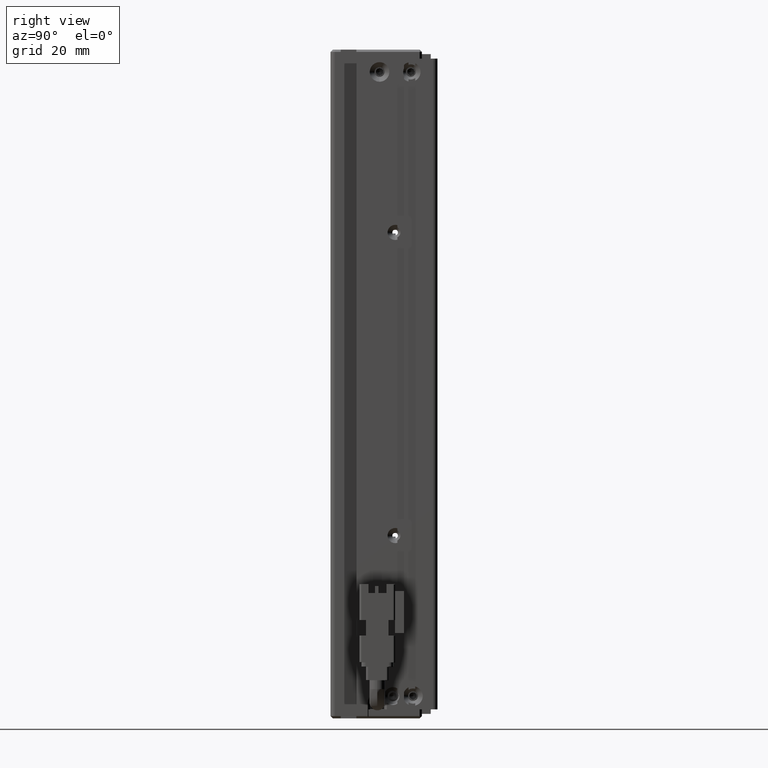
[diagram: clean part render]
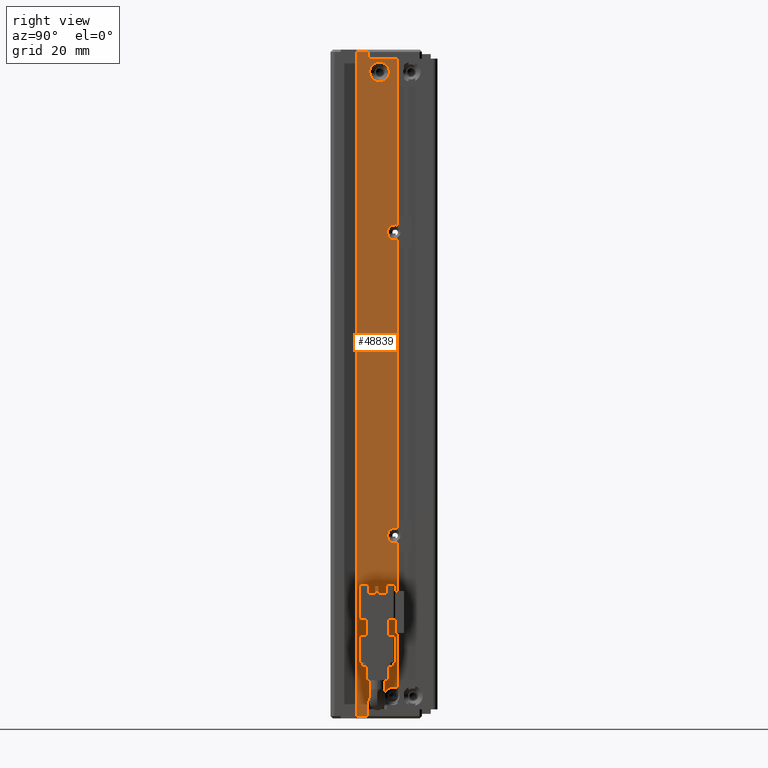
[diagram: same view with one face highlighted and labeled with its STEP entity id]
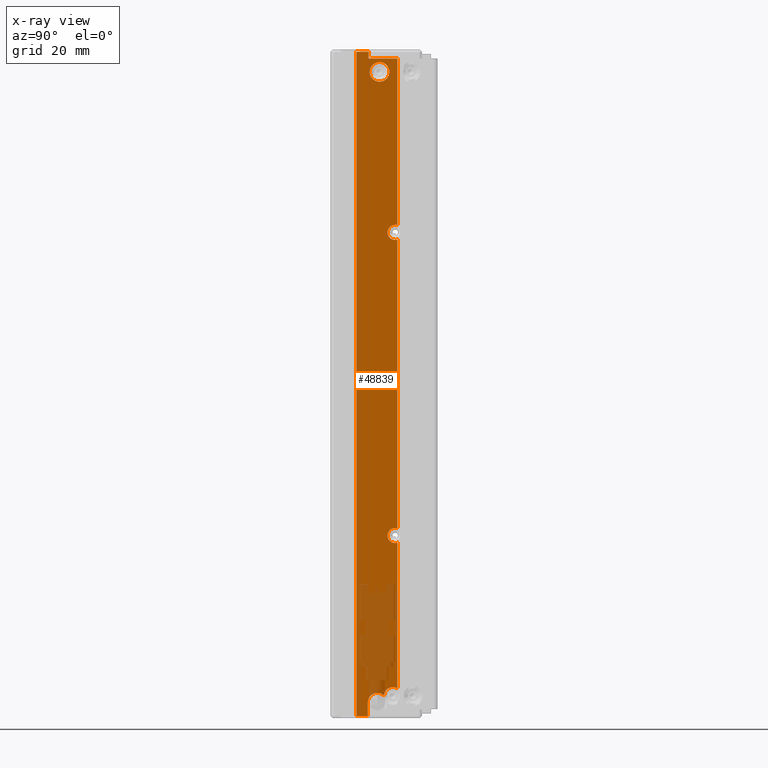
[diagram: x-ray of the same camera — body ghosted, the highlighted face saturated]
A machine part, right view. The second image highlights one B-rep face of the part: STEP entity #48839.
The next image is the same camera in x-ray: the body ghosted, the highlighted face saturated — about 12% of this face is hidden behind the body in this view.
In plain terms, the highlighted planar face has unit normal (-1, 0, 0).
Its self-contained STEP definition (entity closure, byte-faithful):
#209 = DIRECTION ( 'NONE',  ( 0.0000000000000000000, 0.0000000000000000000, 1.000000000000000000 ) ) ;
#380 = AXIS2_PLACEMENT_3D ( 'NONE', #51250, #61962, #30269 ) ;
#1407 = CARTESIAN_POINT ( 'NONE',  ( 58.42537974681950900, 25.49073232304837000, -149.0000000000000300 ) ) ;
#1553 = CARTESIAN_POINT ( 'NONE',  ( 58.42537974687635200, 25.49073232304837000, -79.29999999996380200 ) ) ;
#1597 = EDGE_CURVE ( 'NONE', #37807, #18706, #18166, .T. ) ;
#1899 = ORIENTED_EDGE ( 'NONE', *, *, #47161, .F. ) ;
#2376 = VERTEX_POINT ( 'NONE', #18900 ) ;
#2536 = ORIENTED_EDGE ( 'NONE', *, *, #44950, .F. ) ;
#2674 = CARTESIAN_POINT ( 'NONE',  ( 58.42537974676266500, 21.99073232304837300, -44.99999999999998600 ) ) ;
#3577 = DIRECTION ( 'NONE',  ( 1.000000000000000000, 0.0000000000000000000, 0.0000000000000000000 ) ) ;
#3642 = ORIENTED_EDGE ( 'NONE', *, *, #36129, .T. ) ;
#4445 = CARTESIAN_POINT ( 'NONE',  ( 58.42537974683542500, 19.34073232304833600, -40.00000000000000700 ) ) ;
#4812 = EDGE_LOOP ( 'NONE', ( #67305, #54950, #11569, #37983, #1899, #31576, #7267, #33603, #32512, #41213, #3642, #32925, #36782, #26568, #52739, #7398, #2536, #39683 ) ) ;
#5121 = VECTOR ( 'NONE', #42976, 1000.000000000000000 ) ;
#5564 = CARTESIAN_POINT ( 'NONE',  ( 58.42537974681950900, 21.49073232304837000, -186.4500000000000200 ) ) ;
#5722 = CARTESIAN_POINT ( 'NONE',  ( 58.42537974683542500, 25.99073232304837700, -40.00000000000000700 ) ) ;
#5753 = AXIS2_PLACEMENT_3D ( 'NONE', #24024, #6786, #23775 ) ;
#6017 = LINE ( 'NONE', #64850, #5121 ) ;
#6167 = CARTESIAN_POINT ( 'NONE',  ( 58.42537974676266500, 21.99073232304837300, -47.19999999996617400 ) ) ;
#6473 = CARTESIAN_POINT ( 'NONE',  ( 58.42537974686080600, 25.99073232304837700, -79.37519231905119500 ) ) ;
#6786 = DIRECTION ( 'NONE',  ( 1.000000000000000000, 0.0000000000000000000, 0.0000000000000000000 ) ) ;
#7267 = ORIENTED_EDGE ( 'NONE', *, *, #35545, .F. ) ;
#7398 = ORIENTED_EDGE ( 'NONE', *, *, #26189, .F. ) ;
#7445 = EDGE_CURVE ( 'NONE', #37651, #61332, #32963, .T. ) ;
#7923 = DIRECTION ( 'NONE',  ( 0.0000000000000000000, 0.0000000000000000000, -1.000000000000000000 ) ) ;
#8217 = VERTEX_POINT ( 'NONE', #39108 ) ;
#9069 = CARTESIAN_POINT ( 'NONE',  ( 58.42537974687635200, 25.49073232304837000, -81.00000000000000000 ) ) ;
#9858 = CIRCLE ( 'NONE', #18851, 2.149999999998986100 ) ;
#10174 = DIRECTION ( 'NONE',  ( 1.000000000000000000, 0.0000000000000000000, 0.0000000000000000000 ) ) ;
#11569 = ORIENTED_EDGE ( 'NONE', *, *, #30115, .F. ) ;
#11638 = CARTESIAN_POINT ( 'NONE',  ( 58.42537974683543900, 7.083797468354437600, -189.5000000000000000 ) ) ;
#11694 = CIRCLE ( 'NONE', #59690, 2.199999999966187200 ) ;
#12816 = EDGE_CURVE ( 'NONE', #37807, #43029, #33726, .T. ) ;
#13010 = VERTEX_POINT ( 'NONE', #21828 ) ;
#13177 = CARTESIAN_POINT ( 'NONE',  ( 58.42537974683542500, 25.99073232304837700, -40.00000000000000700 ) ) ;
#13226 = DIRECTION ( 'NONE',  ( 1.000000000000000000, 0.0000000000000000000, 0.0000000000000000000 ) ) ;
#13348 = CIRCLE ( 'NONE', #51357, 1.700000000036200300 ) ;
#13448 = CIRCLE ( 'NONE', #17235, 2.000000000002721800 ) ;
#15000 = CIRCLE ( 'NONE', #47190, 1.700000000019824500 ) ;
#15074 = VERTEX_POINT ( 'NONE', #36840 ) ;
#15156 = DIRECTION ( 'NONE',  ( 1.000000000000000000, 0.0000000000000000000, 0.0000000000000000000 ) ) ;
#15589 = ORIENTED_EDGE ( 'NONE', *, *, #42291, .F. ) ;
#16383 = DIRECTION ( 'NONE',  ( 0.0000000000000000000, 0.0000000000000000000, -1.000000000000000000 ) ) ;
#16417 = VERTEX_POINT ( 'NONE', #27073 ) ;
#17235 = AXIS2_PLACEMENT_3D ( 'NONE', #70205, #20783, #48274 ) ;
#17456 = LINE ( 'NONE', #40094, #56688 ) ;
#18050 = CARTESIAN_POINT ( 'NONE',  ( 58.42537974681950900, 25.49073232304837000, -150.7000000000198600 ) ) ;
#18166 = LINE ( 'NONE', #11638, #50650 ) ;
#18706 = VERTEX_POINT ( 'NONE', #48179 ) ;
#18851 = AXIS2_PLACEMENT_3D ( 'NONE', #5564, #38125, #27578 ) ;
#18900 = CARTESIAN_POINT ( 'NONE',  ( 58.42537974687635200, 25.49073232304837000, -82.70000000003619800 ) ) ;
#19412 = EDGE_LOOP ( 'NONE', ( #15589, #24943 ) ) ;
#20783 = DIRECTION ( 'NONE',  ( 1.000000000000000000, 0.0000000000000000000, 0.0000000000000000000 ) ) ;
#20996 = LINE ( 'NONE', #31139, #62815 ) ;
#21828 = CARTESIAN_POINT ( 'NONE',  ( 58.42537974683542500, 19.49073232304837000, -40.50000000000002100 ) ) ;
#22389 = DIRECTION ( 'NONE',  ( 0.0000000000000000000, 1.000000000000000000, -0.0000000000000000000 ) ) ;
#22609 = CIRCLE ( 'NONE', #380, 2.000000000002721800 ) ;
#23775 = DIRECTION ( 'NONE',  ( 0.0000000000000000000, 0.0000000000000000000, -1.000000000000000000 ) ) ;
#24024 = CARTESIAN_POINT ( 'NONE',  ( 58.42537974681950900, 25.49073232304837000, -149.0000000000000300 ) ) ;
#24393 = DIRECTION ( 'NONE',  ( -0.0000000000000000000, -0.0000000000000000000, -1.000000000000000000 ) ) ;
#24943 = ORIENTED_EDGE ( 'NONE', *, *, #64736, .F. ) ;
#26043 = DIRECTION ( 'NONE',  ( -0.0000000000000000000, -0.0000000000000000000, -1.000000000000000000 ) ) ;
#26189 = EDGE_CURVE ( 'NONE', #39733, #18706, #40770, .T. ) ;
#26568 = ORIENTED_EDGE ( 'NONE', *, *, #12816, .F. ) ;
#27073 = CARTESIAN_POINT ( 'NONE',  ( 58.42537974681831500, 25.99073232304837700, -150.6248076809466700 ) ) ;
#27141 = CARTESIAN_POINT ( 'NONE',  ( 58.42537974681950900, 25.49073232304837000, -149.0000000000000300 ) ) ;
#27578 = DIRECTION ( 'NONE',  ( 0.0000000000000000000, 0.0000000000000000000, -1.000000000000000000 ) ) ;
#29268 = VECTOR ( 'NONE', #24393, 1000.000000000000000 ) ;
#29681 = CARTESIAN_POINT ( 'NONE',  ( 58.42537974681950900, 25.49073232304837000, -147.2999999999802000 ) ) ;
#29938 = DIRECTION ( 'NONE',  ( 1.000000000000000000, 0.0000000000000000000, 0.0000000000000000000 ) ) ;
#30115 = EDGE_CURVE ( 'NONE', #33402, #16417, #15000, .T. ) ;
#30269 = DIRECTION ( 'NONE',  ( 0.0000000000000000000, 0.0000000000000000000, -1.000000000000000000 ) ) ;
#30349 = CARTESIAN_POINT ( 'NONE',  ( 58.42537974683542500, 16.79073232304836700, -40.00000000000000700 ) ) ;
#30562 = CARTESIAN_POINT ( 'NONE',  ( 58.42537974686080600, 25.99073232304837700, -82.62480768094880500 ) ) ;
#30860 = AXIS2_PLACEMENT_3D ( 'NONE', #64489, #15156, #36694 ) ;
#31139 = CARTESIAN_POINT ( 'NONE',  ( 58.42537974683542500, 19.49073232304837000, -40.00000000000000700 ) ) ;
#31576 = ORIENTED_EDGE ( 'NONE', *, *, #7445, .F. ) ;
#32512 = ORIENTED_EDGE ( 'NONE', *, *, #48625, .F. ) ;
#32522 = EDGE_CURVE ( 'NONE', #36816, #50336, #13448, .T. ) ;
#32810 = CARTESIAN_POINT ( 'NONE',  ( 58.42537974684719900, 22.99268633698879300, -184.9116131370623500 ) ) ;
#32925 = ORIENTED_EDGE ( 'NONE', *, *, #54848, .F. ) ;
#32963 = LINE ( 'NONE', #47776, #55952 ) ;
#33402 = VERTEX_POINT ( 'NONE', #18050 ) ;
#33530 = LINE ( 'NONE', #13177, #29268 ) ;
#33603 = ORIENTED_EDGE ( 'NONE', *, *, #35565, .F. ) ;
#33726 = LINE ( 'NONE', #30349, #60980 ) ;
#33917 = VERTEX_POINT ( 'NONE', #66437 ) ;
#34195 = DIRECTION ( 'NONE',  ( 1.000000000000000000, 0.0000000000000000000, 0.0000000000000000000 ) ) ;
#34278 = EDGE_CURVE ( 'NONE', #8217, #56553, #68775, .T. ) ;
#34912 = EDGE_CURVE ( 'NONE', #50336, #62211, #22609, .T. ) ;
#35545 = EDGE_CURVE ( 'NONE', #2376, #37651, #56565, .T. ) ;
#35565 = EDGE_CURVE ( 'NONE', #66117, #2376, #62532, .T. ) ;
#36129 = EDGE_CURVE ( 'NONE', #8217, #33917, #6017, .T. ) ;
#36163 = CARTESIAN_POINT ( 'NONE',  ( 58.42537974687635200, 25.49073232304837000, -81.00000000000000000 ) ) ;
#36694 = DIRECTION ( 'NONE',  ( 0.0000000000000000000, 0.0000000000000000000, -1.000000000000000000 ) ) ;
#36782 = ORIENTED_EDGE ( 'NONE', *, *, #70020, .F. ) ;
#36816 = VERTEX_POINT ( 'NONE', #55436 ) ;
#36840 = CARTESIAN_POINT ( 'NONE',  ( 58.42537974676266500, 21.99073232304837300, -42.80000000003379800 ) ) ;
#37651 = VERTEX_POINT ( 'NONE', #30562 ) ;
#37807 = VERTEX_POINT ( 'NONE', #60262 ) ;
#37983 = ORIENTED_EDGE ( 'NONE', *, *, #60718, .F. ) ;
#38125 = DIRECTION ( 'NONE',  ( 1.000000000000000000, 0.0000000000000000000, 0.0000000000000000000 ) ) ;
#39108 = CARTESIAN_POINT ( 'NONE',  ( 58.42537974683542500, 25.99073232304837700, -42.00000000000000700 ) ) ;
#39683 = ORIENTED_EDGE ( 'NONE', *, *, #34912, .F. ) ;
#39733 = VERTEX_POINT ( 'NONE', #45657 ) ;
#40094 = CARTESIAN_POINT ( 'NONE',  ( 58.42537974683542500, 7.083797468354437600, -40.50000000000000700 ) ) ;
#40770 = LINE ( 'NONE', #4445, #56909 ) ;
#41192 = DIRECTION ( 'NONE',  ( 0.0000000000000000000, 0.0000000000000000000, -1.000000000000000000 ) ) ;
#41213 = ORIENTED_EDGE ( 'NONE', *, *, #34278, .F. ) ;
#42291 = EDGE_CURVE ( 'NONE', #53633, #15074, #11694, .T. ) ;
#42834 = EDGE_CURVE ( 'NONE', #16417, #36816, #33530, .T. ) ;
#42976 = DIRECTION ( 'NONE',  ( -0.0000000000000000000, -1.000000000000000000, -0.0000000000000000000 ) ) ;
#43029 = VERTEX_POINT ( 'NONE', #55969 ) ;
#43174 = DIRECTION ( 'NONE',  ( -0.0000000000000000000, -0.0000000000000000000, -1.000000000000000000 ) ) ;
#43758 = DIRECTION ( 'NONE',  ( -0.0000000000000000000, -0.0000000000000000000, -1.000000000000000000 ) ) ;
#44950 = EDGE_CURVE ( 'NONE', #62211, #39733, #9858, .T. ) ;
#45657 = CARTESIAN_POINT ( 'NONE',  ( 58.42537974678086200, 19.34073232307573400, -186.4500000000000200 ) ) ;
#46198 = VERTEX_POINT ( 'NONE', #29681 ) ;
#46864 = DIRECTION ( 'NONE',  ( 0.0000000000000000000, 0.0000000000000000000, -1.000000000000000000 ) ) ;
#47088 = DIRECTION ( 'NONE',  ( 0.0000000000000000000, 0.0000000000000000000, -1.000000000000000000 ) ) ;
#47161 = EDGE_CURVE ( 'NONE', #61332, #46198, #65332, .T. ) ;
#47190 = AXIS2_PLACEMENT_3D ( 'NONE', #27141, #10174, #16383 ) ;
#47776 = CARTESIAN_POINT ( 'NONE',  ( 58.42537974683542500, 25.99073232304837700, -40.00000000000000700 ) ) ;
#48073 = AXIS2_PLACEMENT_3D ( 'NONE', #1407, #34195, #61340 ) ;
#48179 = CARTESIAN_POINT ( 'NONE',  ( 58.42537974683542500, 19.34073232304834300, -189.5000000000000300 ) ) ;
#48274 = DIRECTION ( 'NONE',  ( 0.0000000000000000000, 0.0000000000000000000, -1.000000000000000000 ) ) ;
#48339 = FACE_OUTER_BOUND ( 'NONE', #4812, .T. ) ;
#48625 = EDGE_CURVE ( 'NONE', #56553, #66117, #13348, .T. ) ;
#48839 = ADVANCED_FACE ( 'NONE', ( #48339, #55129 ), #49941, .F. ) ;
#49251 = DIRECTION ( 'NONE',  ( -1.000000000000000000, 0.0000000000000000000, 0.0000000000000000000 ) ) ;
#49713 = CARTESIAN_POINT ( 'NONE',  ( 58.42537974683542500, 7.083797468354437600, -40.00000000000000700 ) ) ;
#49925 = CARTESIAN_POINT ( 'NONE',  ( 58.42537974687635200, 24.99073232304836600, -182.9999999999972700 ) ) ;
#49941 = PLANE ( 'NONE',  #65983 ) ;
#50336 = VERTEX_POINT ( 'NONE', #49925 ) ;
#50650 = VECTOR ( 'NONE', #22389, 1000.000000000000000 ) ;
#51250 = CARTESIAN_POINT ( 'NONE',  ( 58.42537974687635200, 24.99073232304836600, -185.0000000000000000 ) ) ;
#51357 = AXIS2_PLACEMENT_3D ( 'NONE', #57315, #29938, #41192 ) ;
#52471 = CIRCLE ( 'NONE', #48073, 1.700000000019824500 ) ;
#52739 = ORIENTED_EDGE ( 'NONE', *, *, #1597, .T. ) ;
#53570 = AXIS2_PLACEMENT_3D ( 'NONE', #36163, #57512, #46864 ) ;
#53633 = VERTEX_POINT ( 'NONE', #6167 ) ;
#54266 = VECTOR ( 'NONE', #43758, 1000.000000000000000 ) ;
#54848 = EDGE_CURVE ( 'NONE', #13010, #33917, #20996, .T. ) ;
#54950 = ORIENTED_EDGE ( 'NONE', *, *, #42834, .F. ) ;
#55129 = FACE_BOUND ( 'NONE', #19412, .T. ) ;
#55436 = CARTESIAN_POINT ( 'NONE',  ( 58.42537974686867100, 25.99073232304837700, -183.2679491924368200 ) ) ;
#55952 = VECTOR ( 'NONE', #26043, 1000.000000000000000 ) ;
#55969 = CARTESIAN_POINT ( 'NONE',  ( 58.42537974683542500, 16.79073232304836300, -40.50000000000002100 ) ) ;
#56553 = VERTEX_POINT ( 'NONE', #6473 ) ;
#56565 = CIRCLE ( 'NONE', #62217, 1.700000000036200300 ) ;
#56688 = VECTOR ( 'NONE', #67484, 1000.000000000000000 ) ;
#56909 = VECTOR ( 'NONE', #43174, 1000.000000000000000 ) ;
#57168 = DIRECTION ( 'NONE',  ( 0.0000000000000000000, 0.0000000000000000000, 1.000000000000000000 ) ) ;
#57315 = CARTESIAN_POINT ( 'NONE',  ( 58.42537974687635200, 25.49073232304837000, -81.00000000000000000 ) ) ;
#57512 = DIRECTION ( 'NONE',  ( 1.000000000000000000, 0.0000000000000000000, 0.0000000000000000000 ) ) ;
#58699 = DIRECTION ( 'NONE',  ( -0.0000000000000000000, -0.0000000000000000000, -1.000000000000000000 ) ) ;
#59690 = AXIS2_PLACEMENT_3D ( 'NONE', #2674, #13226, #7923 ) ;
#60262 = CARTESIAN_POINT ( 'NONE',  ( 58.42537974683543200, 16.79073232304836700, -189.5000000000000000 ) ) ;
#60718 = EDGE_CURVE ( 'NONE', #46198, #33402, #52471, .T. ) ;
#60980 = VECTOR ( 'NONE', #57168, 1000.000000000000000 ) ;
#61332 = VERTEX_POINT ( 'NONE', #62702 ) ;
#61340 = DIRECTION ( 'NONE',  ( 0.0000000000000000000, 0.0000000000000000000, -1.000000000000000000 ) ) ;
#61962 = DIRECTION ( 'NONE',  ( 1.000000000000000000, 0.0000000000000000000, 0.0000000000000000000 ) ) ;
#62211 = VERTEX_POINT ( 'NONE', #32810 ) ;
#62217 = AXIS2_PLACEMENT_3D ( 'NONE', #9069, #3577, #47088 ) ;
#62532 = CIRCLE ( 'NONE', #53570, 1.700000000036200300 ) ;
#62702 = CARTESIAN_POINT ( 'NONE',  ( 58.42537974681831500, 25.99073232304837700, -147.3751923190533300 ) ) ;
#62815 = VECTOR ( 'NONE', #58699, 1000.000000000000000 ) ;
#64489 = CARTESIAN_POINT ( 'NONE',  ( 58.42537974676266500, 21.99073232304837300, -44.99999999999998600 ) ) ;
#64736 = EDGE_CURVE ( 'NONE', #15074, #53633, #70027, .T. ) ;
#64850 = CARTESIAN_POINT ( 'NONE',  ( 58.42537974683542500, 34.99073232304837700, -42.00000000000000700 ) ) ;
#65332 = CIRCLE ( 'NONE', #5753, 1.700000000019824500 ) ;
#65983 = AXIS2_PLACEMENT_3D ( 'NONE', #49713, #49251, #209 ) ;
#66117 = VERTEX_POINT ( 'NONE', #1553 ) ;
#66437 = CARTESIAN_POINT ( 'NONE',  ( 58.42537974683542500, 19.49073232304837000, -42.00000000000000700 ) ) ;
#67305 = ORIENTED_EDGE ( 'NONE', *, *, #32522, .F. ) ;
#67484 = DIRECTION ( 'NONE',  ( -0.0000000000000000000, 1.000000000000000000, 0.0000000000000000000 ) ) ;
#68775 = LINE ( 'NONE', #5722, #54266 ) ;
#70020 = EDGE_CURVE ( 'NONE', #43029, #13010, #17456, .T. ) ;
#70027 = CIRCLE ( 'NONE', #30860, 2.199999999966187200 ) ;
#70205 = CARTESIAN_POINT ( 'NONE',  ( 58.42537974687635200, 24.99073232304836600, -185.0000000000000000 ) ) ;